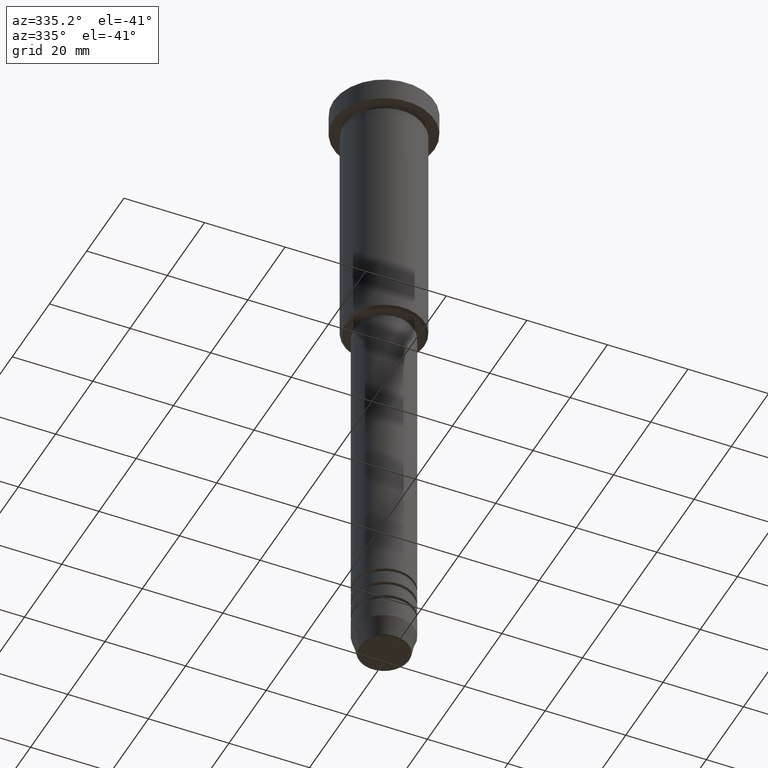
[diagram: clean part render]
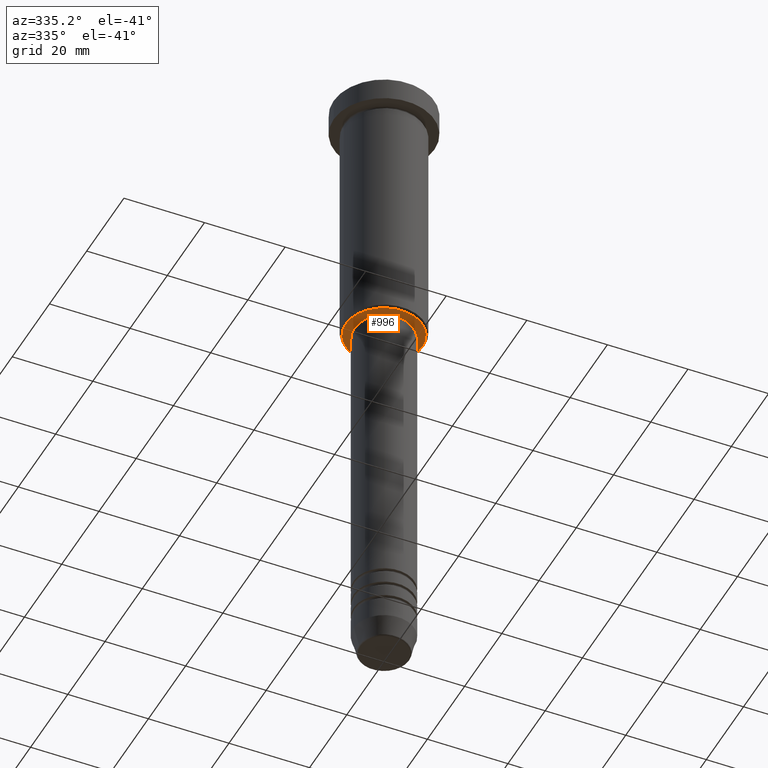
[diagram: same view with one face highlighted and labeled with its STEP entity id]
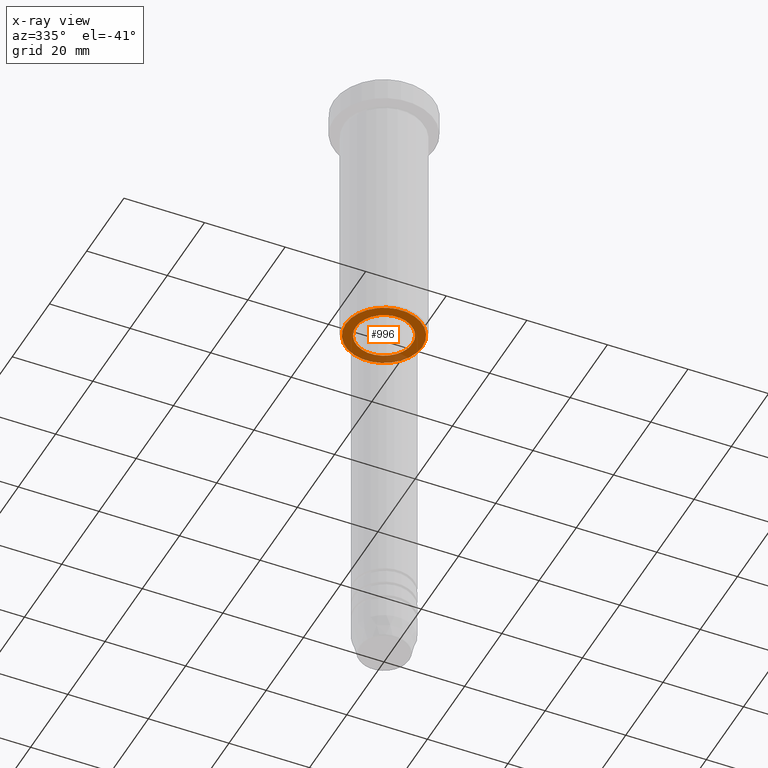
[diagram: x-ray of the same camera — body ghosted, the highlighted face saturated]
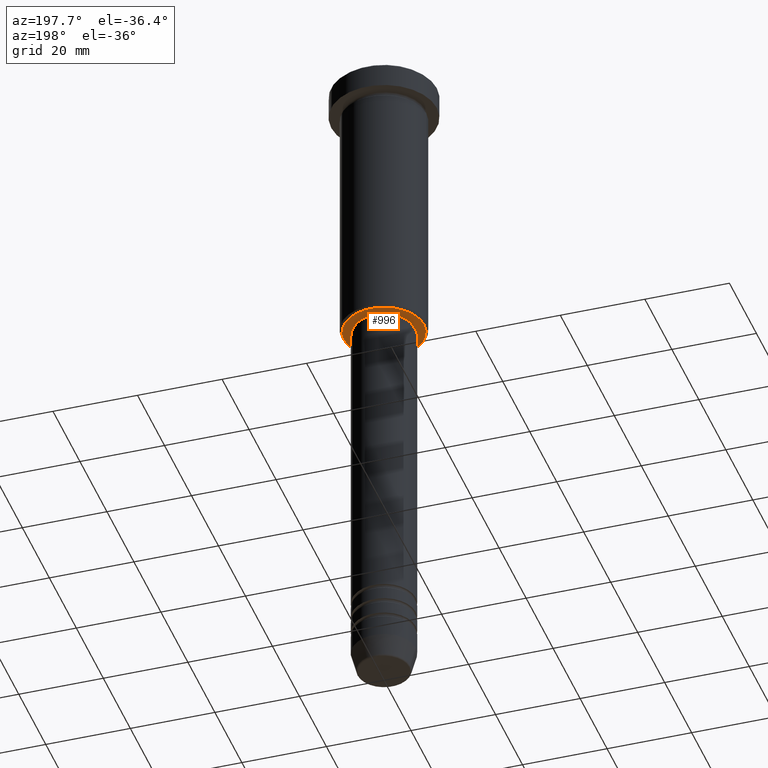
[diagram: same view with one face highlighted and labeled with its STEP entity id]
A machine part, auxiliary view. The second image highlights one B-rep face of the part: STEP entity #996.
The next image is the same camera in x-ray: the body ghosted, the highlighted face saturated — about 18% of this face is hidden behind the body in this view.
A second angle (auxiliary view) of the same face is appended — the face is thin or edge-on in the first view.
In plain terms, the highlighted planar face has unit normal (0, 0, -1).
Its self-contained STEP definition (entity closure, byte-faithful):
#1 = EDGE_LOOP ( 'NONE', ( #1053, #29 ) ) ;
#5 = CIRCLE ( 'NONE', #982, 9.499999999999994671 ) ;
#6 = EDGE_CURVE ( 'NONE', #458, #841, #506, .T. ) ;
#29 = ORIENTED_EDGE ( 'NONE', *, *, #6, .T. ) ;
#53 = DIRECTION ( 'NONE',  ( 0.000000000000000000, 0.000000000000000000, -1.000000000000000000 ) ) ;
#64 = AXIS2_PLACEMENT_3D ( 'NONE', #1168, #361, #1082 ) ;
#106 = AXIS2_PLACEMENT_3D ( 'NONE', #714, #699, #615 ) ;
#139 = CARTESIAN_POINT ( 'NONE',  ( -9.499999999999994671, 1.194030629168669075E-15, -66.00000000000002842 ) ) ;
#150 = EDGE_LOOP ( 'NONE', ( #662, #465 ) ) ;
#217 = DIRECTION ( 'NONE',  ( -0.000000000000000000, -0.000000000000000000, 1.000000000000000000 ) ) ;
#285 = EDGE_CURVE ( 'NONE', #753, #1119, #1003, .T. ) ;
#344 = FACE_OUTER_BOUND ( 'NONE', #1, .T. ) ;
#358 = CIRCLE ( 'NONE', #64, 6.999999999999999112 ) ;
#361 = DIRECTION ( 'NONE',  ( -0.000000000000000000, -0.000000000000000000, 1.000000000000000000 ) ) ;
#436 = CARTESIAN_POINT ( 'NONE',  ( 9.499999999999994671, 0.000000000000000000, -66.00000000000002842 ) ) ;
#458 = VERTEX_POINT ( 'NONE', #139 ) ;
#465 = ORIENTED_EDGE ( 'NONE', *, *, #1049, .T. ) ;
#469 = AXIS2_PLACEMENT_3D ( 'NONE', #675, #217, #565 ) ;
#482 = EDGE_CURVE ( 'NONE', #841, #458, #5, .T. ) ;
#506 = CIRCLE ( 'NONE', #731, 9.499999999999994671 ) ;
#565 = DIRECTION ( 'NONE',  ( 1.000000000000000000, 0.000000000000000000, 0.000000000000000000 ) ) ;
#580 = CARTESIAN_POINT ( 'NONE',  ( 6.999999999999999112, 0.000000000000000000, -66.00000000000002842 ) ) ;
#611 = DIRECTION ( 'NONE',  ( 0.000000000000000000, 0.000000000000000000, -1.000000000000000000 ) ) ;
#615 = DIRECTION ( 'NONE',  ( -1.000000000000000000, 0.000000000000000000, -0.000000000000000000 ) ) ;
#662 = ORIENTED_EDGE ( 'NONE', *, *, #285, .T. ) ;
#675 = CARTESIAN_POINT ( 'NONE',  ( 0.000000000000000000, 0.000000000000000000, -66.00000000000002842 ) ) ;
#693 = CARTESIAN_POINT ( 'NONE',  ( 0.000000000000000000, 0.000000000000000000, -66.00000000000002842 ) ) ;
#699 = DIRECTION ( 'NONE',  ( 0.000000000000000000, 0.000000000000000000, -1.000000000000000000 ) ) ;
#714 = CARTESIAN_POINT ( 'NONE',  ( 0.000000000000000000, 10.00000000000000000, -66.00000000000002842 ) ) ;
#731 = AXIS2_PLACEMENT_3D ( 'NONE', #778, #611, #1156 ) ;
#753 = VERTEX_POINT ( 'NONE', #580 ) ;
#778 = CARTESIAN_POINT ( 'NONE',  ( 0.000000000000000000, 0.000000000000000000, -66.00000000000002842 ) ) ;
#801 = PLANE ( 'NONE',  #106 ) ;
#804 = DIRECTION ( 'NONE',  ( -1.000000000000000000, 0.000000000000000000, 0.000000000000000000 ) ) ;
#825 = CARTESIAN_POINT ( 'NONE',  ( -6.999999999999999112, 8.572527594031472204E-16, -66.00000000000002842 ) ) ;
#841 = VERTEX_POINT ( 'NONE', #436 ) ;
#982 = AXIS2_PLACEMENT_3D ( 'NONE', #693, #53, #804 ) ;
#996 = ADVANCED_FACE ( 'NONE', ( #344, #1067 ), #801, .T. ) ;
#1003 = CIRCLE ( 'NONE', #469, 6.999999999999999112 ) ;
#1049 = EDGE_CURVE ( 'NONE', #1119, #753, #358, .T. ) ;
#1053 = ORIENTED_EDGE ( 'NONE', *, *, #482, .T. ) ;
#1067 = FACE_BOUND ( 'NONE', #150, .T. ) ;
#1082 = DIRECTION ( 'NONE',  ( 1.000000000000000000, 0.000000000000000000, 0.000000000000000000 ) ) ;
#1119 = VERTEX_POINT ( 'NONE', #825 ) ;
#1156 = DIRECTION ( 'NONE',  ( -1.000000000000000000, 0.000000000000000000, 0.000000000000000000 ) ) ;
#1168 = CARTESIAN_POINT ( 'NONE',  ( 0.000000000000000000, 0.000000000000000000, -66.00000000000002842 ) ) ;